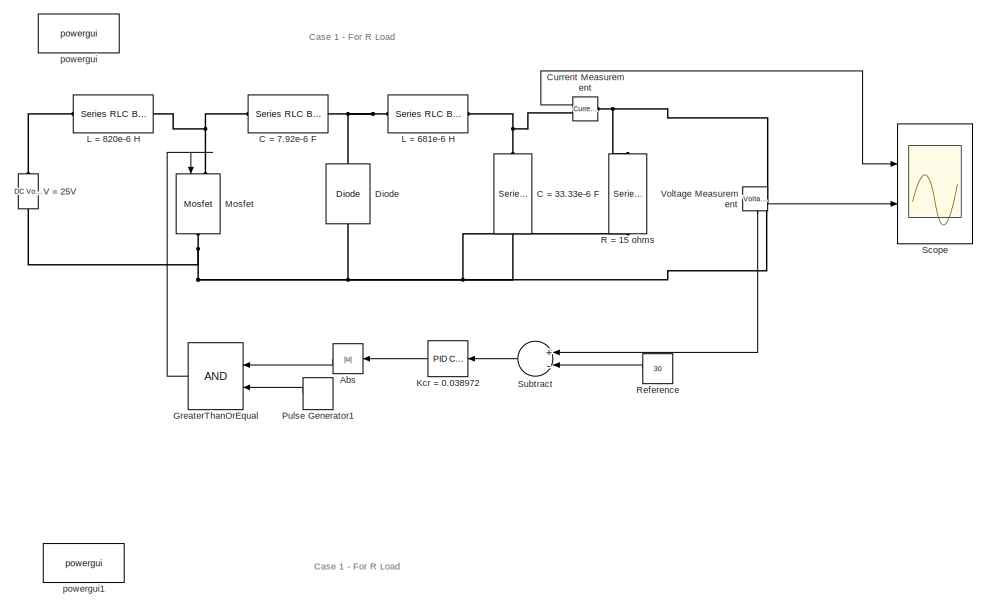
[diagram: root canvas - part 1/2, full width, top band]
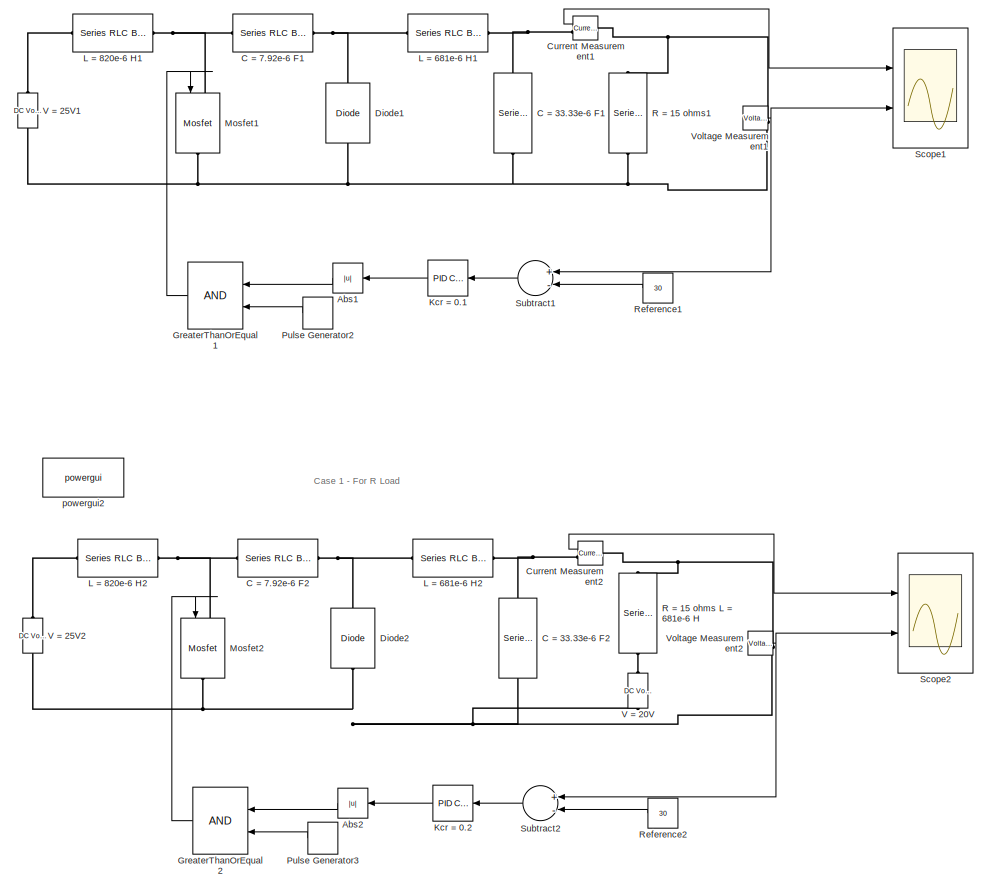
[diagram: root canvas - part 2/2, full width, bottom band]
MODEL slx_543d6f5be8af
KIND model
CONFIG AbsTol = auto
CONFIG EnableMultiTasking = off
CONFIG FixedStep = auto
CONFIG MaxStep = auto
CONFIG MinStep = auto
CONFIG RelTol = 1e-3
CONFIG SampleTimeConstraint = Unconstrained
CONFIG Solver = VariableStepAuto
CONFIG SolverName = VariableStepAuto
CONFIG StartTime = 0.0
CONFIG StopTime = 0.5
BLOCK [Abs] Abs
  SaturateOnIntegerOverflow = off
BLOCK [Abs] Abs1
  SaturateOnIntegerOverflow = off
BLOCK [Abs] Abs2
  SaturateOnIntegerOverflow = off
BLOCK [Reference] C = 33.33e-6 F  REF=powerlib/Elements/Series RLC Branch
  Ports = [0, 0, 0, 0, 0, 1, 1]
  SourceBlock = powerlib/Elements/Series RLC Branch
  SourceProductBaseCode = PS
  SourceProductName = Simscape Power Systems
  SourceType = Series RLC Branch
BLOCK [Reference] C = 33.33e-6 F1  REF=powerlib/Elements/Series RLC Branch
  Ports = [0, 0, 0, 0, 0, 1, 1]
  SourceBlock = powerlib/Elements/Series RLC Branch
  SourceProductBaseCode = PS
  SourceProductName = Simscape Power Systems
  SourceType = Series RLC Branch
BLOCK [Reference] C = 33.33e-6 F2  REF=powerlib/Elements/Series RLC Branch
  Ports = [0, 0, 0, 0, 0, 1, 1]
  SourceBlock = powerlib/Elements/Series RLC Branch
  SourceProductBaseCode = PS
  SourceProductName = Simscape Power Systems
  SourceType = Series RLC Branch
BLOCK [Reference] C = 7.92e-6 F  REF=powerlib/Elements/Series RLC Branch
  Ports = [0, 0, 0, 0, 0, 1, 1]
  SourceBlock = powerlib/Elements/Series RLC Branch
  SourceProductBaseCode = PS
  SourceProductName = Simscape Power Systems
  SourceType = Series RLC Branch
BLOCK [Reference] C = 7.92e-6 F1  REF=powerlib/Elements/Series RLC Branch
  Ports = [0, 0, 0, 0, 0, 1, 1]
  SourceBlock = powerlib/Elements/Series RLC Branch
  SourceProductBaseCode = PS
  SourceProductName = Simscape Power Systems
  SourceType = Series RLC Branch
BLOCK [Reference] C = 7.92e-6 F2  REF=powerlib/Elements/Series RLC Branch
  Ports = [0, 0, 0, 0, 0, 1, 1]
  SourceBlock = powerlib/Elements/Series RLC Branch
  SourceProductBaseCode = PS
  SourceProductName = Simscape Power Systems
  SourceType = Series RLC Branch
BLOCK [Reference] Current Measurement  REF=powerlib/Measurements/Current Measurement
  Ports = [0, 1, 0, 0, 0, 1, 1]
  SourceBlock = powerlib/Measurements/Current Measurement
  SourceProductBaseCode = PS
  SourceProductName = Simscape Power Systems
  SourceType = Current Measurement
  UserDataPersistent = on
BLOCK [Reference] Current Measurement1  REF=powerlib/Measurements/Current Measurement
  Ports = [0, 1, 0, 0, 0, 1, 1]
  SourceBlock = powerlib/Measurements/Current Measurement
  SourceProductBaseCode = PS
  SourceProductName = Simscape Power Systems
  SourceType = Current Measurement
  UserDataPersistent = on
BLOCK [Reference] Current Measurement2  REF=powerlib/Measurements/Current Measurement
  Ports = [0, 1, 0, 0, 0, 1, 1]
  SourceBlock = powerlib/Measurements/Current Measurement
  SourceProductBaseCode = PS
  SourceProductName = Simscape Power Systems
  SourceType = Current Measurement
  UserDataPersistent = on
BLOCK [Reference] Diode  REF=powerlib/Power
Electronics/Diode
  Ports = [0, 0, 0, 0, 0, 1, 1]
  SourceBlock = powerlib/Power\nElectronics/Diode
  SourceProductBaseCode = PS
  SourceProductName = Simscape Power Systems
  SourceType = Diode
BLOCK [Reference] Diode1  REF=powerlib/Power
Electronics/Diode
  Ports = [0, 0, 0, 0, 0, 1, 1]
  SourceBlock = powerlib/Power\nElectronics/Diode
  SourceProductBaseCode = PS
  SourceProductName = Simscape Power Systems
  SourceType = Diode
BLOCK [Reference] Diode2  REF=powerlib/Power
Electronics/Diode
  Ports = [0, 0, 0, 0, 0, 1, 1]
  SourceBlock = powerlib/Power\nElectronics/Diode
  SourceProductBaseCode = PS
  SourceProductName = Simscape Power Systems
  SourceType = Diode
BLOCK [RelationalOperator] GreaterThanOrEqual
  InputSameDT = off
  OutDataTypeStr = boolean
  Ports = [2, 1]
  RndMeth = Simplest
BLOCK [RelationalOperator] GreaterThanOrEqual1
  InputSameDT = off
  OutDataTypeStr = boolean
  Ports = [2, 1]
  RndMeth = Simplest
BLOCK [RelationalOperator] GreaterThanOrEqual2
  InputSameDT = off
  OutDataTypeStr = boolean
  Ports = [2, 1]
  RndMeth = Simplest
BLOCK [Reference] Kcr = 0.038972  REF=simulink/Continuous/PID Controller
  Ports = [1, 1]
  SourceBlock = simulink/Continuous/PID Controller
  SourceProductBaseCode = SL
  SourceProductName = Simulink
  SourceType = PID 1dof
BLOCK [Reference] Kcr = 0.1  REF=simulink/Continuous/PID Controller
  Ports = [1, 1]
  SourceBlock = simulink/Continuous/PID Controller
  SourceProductBaseCode = SL
  SourceProductName = Simulink
  SourceType = PID 1dof
BLOCK [Reference] Kcr = 0.2  REF=simulink/Continuous/PID Controller
  Ports = [1, 1]
  SourceBlock = simulink/Continuous/PID Controller
  SourceProductBaseCode = SL
  SourceProductName = Simulink
  SourceType = PID 1dof
BLOCK [Reference] L = 681e-6 H  REF=powerlib/Elements/Series RLC Branch
  Ports = [0, 0, 0, 0, 0, 1, 1]
  SourceBlock = powerlib/Elements/Series RLC Branch
  SourceProductBaseCode = PS
  SourceProductName = Simscape Power Systems
  SourceType = Series RLC Branch
BLOCK [Reference] L = 681e-6 H1  REF=powerlib/Elements/Series RLC Branch
  Ports = [0, 0, 0, 0, 0, 1, 1]
  SourceBlock = powerlib/Elements/Series RLC Branch
  SourceProductBaseCode = PS
  SourceProductName = Simscape Power Systems
  SourceType = Series RLC Branch
BLOCK [Reference] L = 681e-6 H2  REF=powerlib/Elements/Series RLC Branch
  Ports = [0, 0, 0, 0, 0, 1, 1]
  SourceBlock = powerlib/Elements/Series RLC Branch
  SourceProductBaseCode = PS
  SourceProductName = Simscape Power Systems
  SourceType = Series RLC Branch
BLOCK [Reference] L = 820e-6 H  REF=powerlib/Elements/Series RLC Branch
  Ports = [0, 0, 0, 0, 0, 1, 1]
  SourceBlock = powerlib/Elements/Series RLC Branch
  SourceProductBaseCode = PS
  SourceProductName = Simscape Power Systems
  SourceType = Series RLC Branch
BLOCK [Reference] L = 820e-6 H1  REF=powerlib/Elements/Series RLC Branch
  Ports = [0, 0, 0, 0, 0, 1, 1]
  SourceBlock = powerlib/Elements/Series RLC Branch
  SourceProductBaseCode = PS
  SourceProductName = Simscape Power Systems
  SourceType = Series RLC Branch
BLOCK [Reference] L = 820e-6 H2  REF=powerlib/Elements/Series RLC Branch
  Ports = [0, 0, 0, 0, 0, 1, 1]
  SourceBlock = powerlib/Elements/Series RLC Branch
  SourceProductBaseCode = PS
  SourceProductName = Simscape Power Systems
  SourceType = Series RLC Branch
BLOCK [Reference] Mosfet  REF=powerlib/Power
Electronics/Mosfet
  Ports = [1, 0, 0, 0, 0, 1, 1]
  SourceBlock = powerlib/Power\nElectronics/Mosfet
  SourceProductBaseCode = PS
  SourceProductName = Simscape Power Systems
  SourceType = Mosfet
BLOCK [Reference] Mosfet1  REF=powerlib/Power
Electronics/Mosfet
  Ports = [1, 0, 0, 0, 0, 1, 1]
  SourceBlock = powerlib/Power\nElectronics/Mosfet
  SourceProductBaseCode = PS
  SourceProductName = Simscape Power Systems
  SourceType = Mosfet
BLOCK [Reference] Mosfet2  REF=powerlib/Power
Electronics/Mosfet
  Ports = [1, 0, 0, 0, 0, 1, 1]
  SourceBlock = powerlib/Power\nElectronics/Mosfet
  SourceProductBaseCode = PS
  SourceProductName = Simscape Power Systems
  SourceType = Mosfet
BLOCK [DiscretePulseGenerator] Pulse Generator1
  Period = 1/100000
  Ports = [0, 1]
  PulseType = Time based
  PulseWidth = 30
BLOCK [DiscretePulseGenerator] Pulse Generator2
  Period = 1/100000
  Ports = [0, 1]
  PulseType = Time based
  PulseWidth = 30
BLOCK [DiscretePulseGenerator] Pulse Generator3
  Period = 1/100000
  Ports = [0, 1]
  PulseType = Time based
  PulseWidth = 30
BLOCK [Reference] R = 15 ohms  REF=powerlib/Elements/Series RLC Branch
  Ports = [0, 0, 0, 0, 0, 1, 1]
  SourceBlock = powerlib/Elements/Series RLC Branch
  SourceProductBaseCode = PS
  SourceProductName = Simscape Power Systems
  SourceType = Series RLC Branch
BLOCK [Reference] R = 15 ohms L = 681e-6 H  REF=powerlib/Elements/Series RLC Branch
  Ports = [0, 0, 0, 0, 0, 1, 1]
  SourceBlock = powerlib/Elements/Series RLC Branch
  SourceProductBaseCode = PS
  SourceProductName = Simscape Power Systems
  SourceType = Series RLC Branch
BLOCK [Reference] R = 15 ohms1  REF=powerlib/Elements/Series RLC Branch
  Ports = [0, 0, 0, 0, 0, 1, 1]
  SourceBlock = powerlib/Elements/Series RLC Branch
  SourceProductBaseCode = PS
  SourceProductName = Simscape Power Systems
  SourceType = Series RLC Branch
BLOCK [Constant] Reference
  Value = 30
BLOCK [Constant] Reference1
  Value = 30
BLOCK [Constant] Reference2
  Value = 30
BLOCK [Scope] Scope
  Floating = off
  NumInputPorts = 2
  Ports = [2]
  ScopeSpecificationString = Simulink.scopes.TimeScopeBlockCfg('CurrentConfiguration', extmgr.ConfigurationSet(extmgr.Configuration('Core','General UI',true,'FigureColor',[1 1 1]),extmgr.Configuration('Core','Source UI',true),extmgr.Configuration('Sources','WiredSimulink',true),extmgr.Configuration('Visuals','Time Domain',true,'SerializedDisplays',{struct('MinYLimReal','-5.03653','MaxYLimReal','45.32879','YLabelReal','Load Cu...<+2280ch>
BLOCK [Scope] Scope1
  Floating = off
  NumInputPorts = 2
  Ports = [2]
  ScopeSpecificationString = Simulink.scopes.TimeScopeBlockCfg('CurrentConfiguration', extmgr.ConfigurationSet(extmgr.Configuration('Core','General UI',true,'FigureColor',[1 1 1]),extmgr.Configuration('Core','Source UI',true),extmgr.Configuration('Sources','WiredSimulink',true,'DataLoggingVariableName','ScopeData1'),extmgr.Configuration('Visuals','Time Domain',true,'SerializedDisplays',{struct('MinYLimReal','-2.61656','MaxYLi...<+2314ch>
BLOCK [Scope] Scope2
  Floating = off
  NumInputPorts = 2
  Ports = [2]
  ScopeSpecificationString = Simulink.scopes.TimeScopeBlockCfg('CurrentConfiguration', extmgr.ConfigurationSet(extmgr.Configuration('Core','General UI',true,'FigureColor',[1 1 1]),extmgr.Configuration('Core','Source UI',true),extmgr.Configuration('Sources','WiredSimulink',true,'DataLoggingVariableName','ScopeData2'),extmgr.Configuration('Visuals','Time Domain',true,'SerializedDisplays',{struct('MinYLimReal','-3.57236','MaxYLi...<+2314ch>
BLOCK [Sum] Subtract
  InputSameDT = off
  Inputs = +-
  OutDataTypeStr = Inherit: Inherit via internal rule
  Ports = [2, 1]
  SaturateOnIntegerOverflow = off
BLOCK [Sum] Subtract1
  InputSameDT = off
  Inputs = +-
  OutDataTypeStr = Inherit: Inherit via internal rule
  Ports = [2, 1]
  SaturateOnIntegerOverflow = off
BLOCK [Sum] Subtract2
  InputSameDT = off
  Inputs = +-
  OutDataTypeStr = Inherit: Inherit via internal rule
  Ports = [2, 1]
  SaturateOnIntegerOverflow = off
BLOCK [Reference] V = 20V  REF=powerlib/Electrical
Sources/DC Voltage Source
  Ports = [0, 0, 0, 0, 0, 1, 1]
  SourceBlock = powerlib/Electrical\nSources/DC Voltage Source
  SourceProductBaseCode = PS
  SourceProductName = Simscape Power Systems
  SourceType = DC Voltage Source
BLOCK [Reference] V = 25V  REF=powerlib/Electrical
Sources/DC Voltage Source
  Ports = [0, 0, 0, 0, 0, 1, 1]
  SourceBlock = powerlib/Electrical\nSources/DC Voltage Source
  SourceProductBaseCode = PS
  SourceProductName = Simscape Power Systems
  SourceType = DC Voltage Source
BLOCK [Reference] V = 25V1  REF=powerlib/Electrical
Sources/DC Voltage Source
  Ports = [0, 0, 0, 0, 0, 1, 1]
  SourceBlock = powerlib/Electrical\nSources/DC Voltage Source
  SourceProductBaseCode = PS
  SourceProductName = Simscape Power Systems
  SourceType = DC Voltage Source
BLOCK [Reference] V = 25V2  REF=powerlib/Electrical
Sources/DC Voltage Source
  Ports = [0, 0, 0, 0, 0, 1, 1]
  SourceBlock = powerlib/Electrical\nSources/DC Voltage Source
  SourceProductBaseCode = PS
  SourceProductName = Simscape Power Systems
  SourceType = DC Voltage Source
BLOCK [Reference] Voltage Measurement  REF=powerlib/Measurements/Voltage Measurement
  Ports = [0, 1, 0, 0, 0, 2]
  SourceBlock = powerlib/Measurements/Voltage Measurement
  SourceProductBaseCode = PS
  SourceProductName = Simscape Power Systems
  SourceType = Voltage Measurement
  UserDataPersistent = on
BLOCK [Reference] Voltage Measurement1  REF=powerlib/Measurements/Voltage Measurement
  Ports = [0, 1, 0, 0, 0, 2]
  SourceBlock = powerlib/Measurements/Voltage Measurement
  SourceProductBaseCode = PS
  SourceProductName = Simscape Power Systems
  SourceType = Voltage Measurement
  UserDataPersistent = on
BLOCK [Reference] Voltage Measurement2  REF=powerlib/Measurements/Voltage Measurement
  Ports = [0, 1, 0, 0, 0, 2]
  SourceBlock = powerlib/Measurements/Voltage Measurement
  SourceProductBaseCode = PS
  SourceProductName = Simscape Power Systems
  SourceType = Voltage Measurement
  UserDataPersistent = on
BLOCK [Reference] powergui  REF=powerlib/powergui
  Ports = []
  Priority = 1
  SourceBlock = powerlib/powergui
  SourceProductBaseCode = PS
  SourceProductName = Simscape Power Systems
  SourceType = PSB option menu block
BLOCK [Reference] powergui1  REF=powerlib/powergui
  Ports = []
  Priority = 1
  SourceBlock = powerlib/powergui
  SourceProductBaseCode = PS
  SourceProductName = Simscape Power Systems
  SourceType = PSB option menu block
BLOCK [Reference] powergui2  REF=powerlib/powergui
  Ports = []
  Priority = 1
  SourceBlock = powerlib/powergui
  SourceProductBaseCode = PS
  SourceProductName = Simscape Power Systems
  SourceType = PSB option menu block
ANNOTATION (root): Case 1 - For R Load
LINE Abs1:1 -> GreaterThanOrEqual1:1
LINE Abs2:1 -> GreaterThanOrEqual2:1
LINE Abs:1 -> GreaterThanOrEqual:1
LINE Current Measurement1:1 -> Scope1:1
LINE Current Measurement2:1 -> Scope2:1
LINE Current Measurement:1 -> Scope:1
LINE GreaterThanOrEqual1:1 -> Mosfet1:1
LINE GreaterThanOrEqual2:1 -> Mosfet2:1
LINE GreaterThanOrEqual:1 -> Mosfet:1
LINE Kcr = 0.038972:1 -> Abs:1
LINE Kcr = 0.1:1 -> Abs1:1
LINE Kcr = 0.2:1 -> Abs2:1
LINE Pulse Generator1:1 -> GreaterThanOrEqual:2
LINE Pulse Generator2:1 -> GreaterThanOrEqual1:2
LINE Pulse Generator3:1 -> GreaterThanOrEqual2:2
LINE Reference1:1 -> Subtract1:2
LINE Reference2:1 -> Subtract2:2
LINE Reference:1 -> Subtract:2
LINE Subtract1:1 -> Kcr = 0.1:1
LINE Subtract2:1 -> Kcr = 0.2:1
LINE Subtract:1 -> Kcr = 0.038972:1
NET Voltage Measurement1:1 -> Scope1:2, Subtract1:1
NET Voltage Measurement2:1 -> Scope2:2, Subtract2:1
NET Voltage Measurement:1 -> Scope:2, Subtract:1
PNET net1: C = 33.33e-6 F1:LConn1 -- Diode1:RConn1 -- Mosfet1:RConn1 -- R = 15 ohms1:LConn1 -- V = 25V1:LConn1 -- Voltage Measurement1:LConn1
PNET net2: C = 33.33e-6 F1:RConn1 -- Current Measurement1:RConn1 -- L = 681e-6 H1:RConn1
PNET net3: C = 33.33e-6 F2:LConn1 -- Diode2:RConn1 -- Mosfet2:RConn1 -- V = 20V:LConn1 -- V = 25V2:LConn1 -- Voltage Measurement2:LConn1
PNET net4: C = 33.33e-6 F2:RConn1 -- Current Measurement2:RConn1 -- L = 681e-6 H2:RConn1
PNET net5: C = 33.33e-6 F:LConn1 -- Diode:RConn1 -- Mosfet:RConn1 -- R = 15 ohms:LConn1 -- V = 25V:LConn1 -- Voltage Measurement:LConn1
PNET net6: C = 33.33e-6 F:RConn1 -- Current Measurement:RConn1 -- L = 681e-6 H:RConn1
PNET net7: C = 7.92e-6 F1:LConn1 -- L = 820e-6 H1:RConn1 -- Mosfet1:LConn1
PNET net8: C = 7.92e-6 F1:RConn1 -- Diode1:LConn1 -- L = 681e-6 H1:LConn1
PNET net9: C = 7.92e-6 F2:LConn1 -- L = 820e-6 H2:RConn1 -- Mosfet2:LConn1
PNET net10: C = 7.92e-6 F2:RConn1 -- Diode2:LConn1 -- L = 681e-6 H2:LConn1
PNET net11: C = 7.92e-6 F:LConn1 -- L = 820e-6 H:RConn1 -- Mosfet:LConn1
PNET net12: C = 7.92e-6 F:RConn1 -- Diode:LConn1 -- L = 681e-6 H:LConn1
PNET net13: Current Measurement1:LConn1 -- R = 15 ohms1:RConn1 -- Voltage Measurement1:LConn2
PNET net14: Current Measurement2:LConn1 -- R = 15 ohms L = 681e-6 H:RConn1 -- Voltage Measurement2:LConn2
PNET net15: Current Measurement:LConn1 -- R = 15 ohms:RConn1 -- Voltage Measurement:LConn2
PLINE L = 820e-6 H1:LConn1 -- V = 25V1:RConn1
PLINE L = 820e-6 H2:LConn1 -- V = 25V2:RConn1
PLINE L = 820e-6 H:LConn1 -- V = 25V:RConn1
PLINE R = 15 ohms L = 681e-6 H:LConn1 -- V = 20V:RConn1
note: NET lines group one-source signal fan-out (src -> all destinations, sorted); 1:1 wires keep LINE; PNET lines group multi-terminal physical nets as a canonical sorted terminal list (undirected conserving connections); 2-terminal nets keep the pairwise PLINE form
